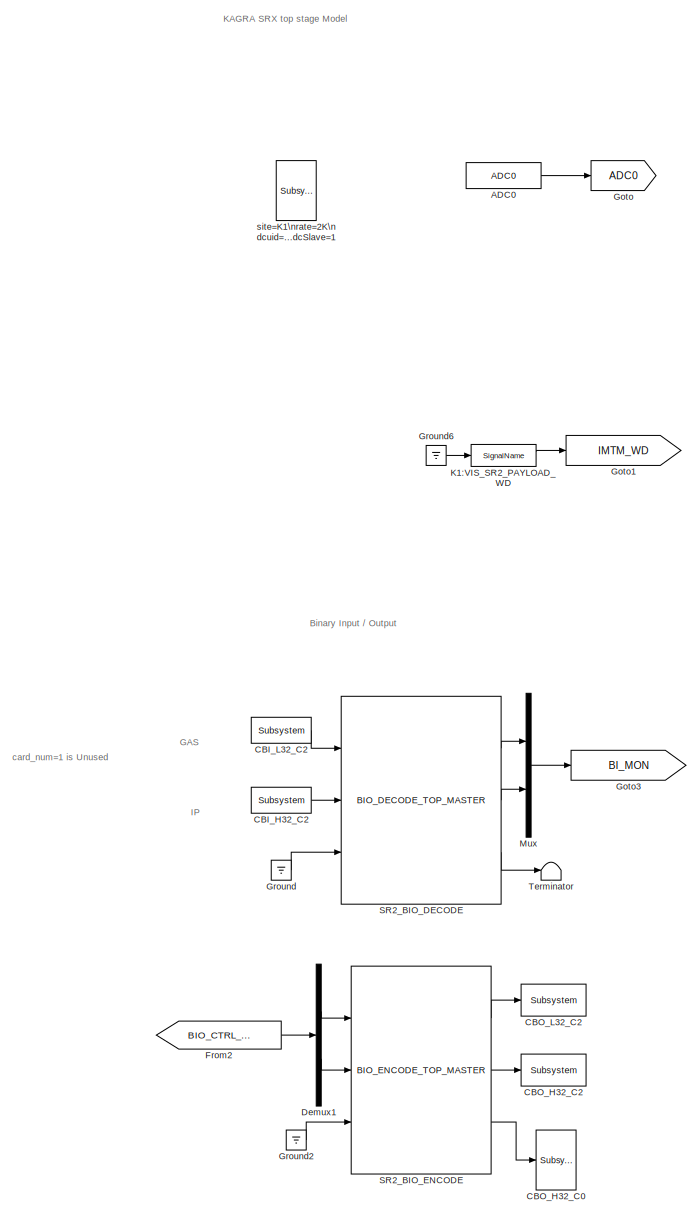
[diagram: root canvas - part 1/3, left side, full height]
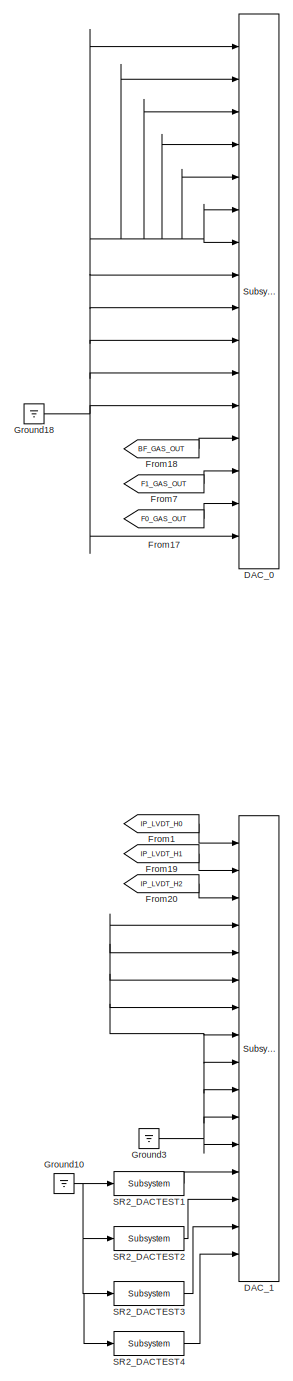
[diagram: root canvas - part 2/3, right side, full height]
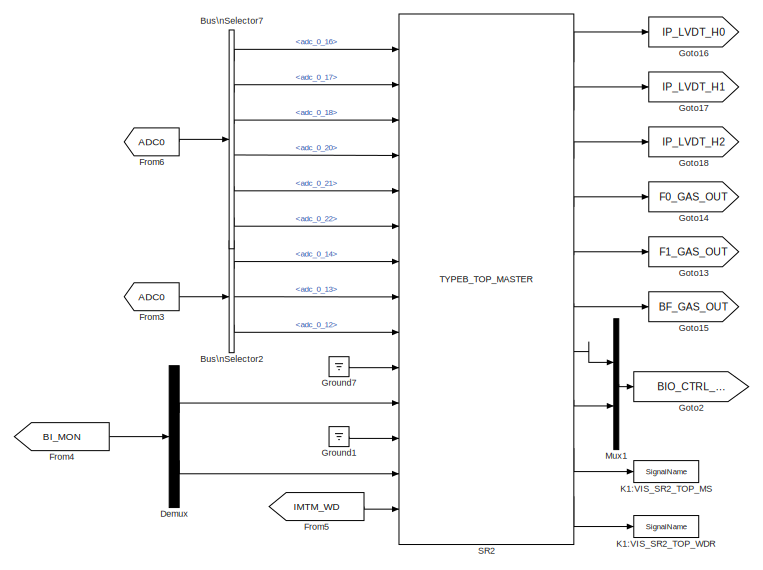
[diagram: root canvas - part 3/3, top center region]
MODEL k1vissrxt
KIND model
BLOCK [Reference] ADC0  REF=cdsAdcx0/ADC0
  AttributesFormatString = %<Description>\\n%<Tag>
  Description = type-GSC_16AI64SSA\ncard_num=0
  Ports = [0, 1]
  SID = 352
  SourceBlock = cdsAdcx0/ADC0
  SourceType = SubSystem
  Tag = cdsAdc
BLOCK [BusSelector] Bus\nSelector2
  AttributesFormatString = %<Description>
  Description = ADC Selector
  OutputSignals = adc_0_14,adc_0_13,adc_0_12
  Ports = [1, 3]
  SID = 606
BLOCK [BusSelector] Bus\nSelector7
  AttributesFormatString = %<Description>
  Description = ADC Selector
  OutputSignals = adc_0_16,adc_0_17,adc_0_18,adc_0_20,adc_0_21,adc_0_22
  Ports = [1, 6]
  SID = 611
BLOCK [Reference] CBI_H32_C2  REF=cdsCDI64/Subsystem
  AttributesFormatString = %<Tag>\\n%<Description>
  Description = card_num=5
  Ports = [0, 1]
  SID = 616
  SourceBlock = cdsCDI64/Subsystem
  SourceType = SubSystem
  Tag = cdsCDI64
BLOCK [Reference] CBI_L32_C2  REF=cdsCDI64/Subsystem
  AttributesFormatString = %<Tag>\\n%<Description>
  Description = card_num=4
  Ports = [0, 1]
  SID = 615
  SourceBlock = cdsCDI64/Subsystem
  SourceType = SubSystem
  Tag = cdsCDI64
BLOCK [Reference] CBO_H32_C0  REF=cdsCDO64/Subsystem
  AttributesFormatString = %<Tag>\\n%<Description>
  Description = card_num=1
  Ports = [1]
  SID = 722
  SourceBlock = cdsCDO64/Subsystem
  SourceType = SubSystem
  Tag = cdsCDO64
BLOCK [Reference] CBO_H32_C2  REF=cdsCDO64/Subsystem
  AttributesFormatString = %<Tag>\\n%<Description>
  Description = card_num=5
  Ports = [1]
  SID = 621
  SourceBlock = cdsCDO64/Subsystem
  SourceType = SubSystem
  Tag = cdsCDO64
BLOCK [Reference] CBO_L32_C2  REF=cdsCDO64/Subsystem
  AttributesFormatString = %<Tag>\\n%<Description>
  Description = card_num=4
  Ports = [1]
  SID = 620
  SourceBlock = cdsCDO64/Subsystem
  SourceType = SubSystem
  Tag = cdsCDO64
BLOCK [Reference] DAC_0  REF=dac/Subsystem  (lib defined in slx_40ef132df75b, slx_b7657ccccc5b, +4 more)
  AttributesFormatString = %<Description>
  Description = type=GSC_16AO16,\ncard_num=0
  Ports = [16]
  SID = 622
  SourceBlock = dac/Subsystem
  SourceType = SubSystem
BLOCK [Reference] DAC_1  REF=dac/Subsystem  (lib defined in slx_40ef132df75b, slx_b7657ccccc5b, +4 more)
  AttributesFormatString = %<Description>
  Description = type=GSC_16AO16,\ncard_num=1
  Ports = [16]
  SID = 623
  SourceBlock = dac/Subsystem
  SourceType = SubSystem
BLOCK [Demux] Demux
  DisplayOption = bar
  Outputs = 2
  Ports = [1, 2]
  SID = 624
BLOCK [Demux] Demux1
  DisplayOption = bar
  Outputs = 2
  Ports = [1, 2]
  SID = 625
BLOCK [From] From1
  GotoTag = IP_LVDT_H0
  SID = 626
BLOCK [From] From17
  GotoTag = F0_GAS_OUT
  SID = 634
BLOCK [From] From18
  GotoTag = BF_GAS_OUT
  SID = 635
BLOCK [From] From19
  GotoTag = IP_LVDT_H1
  SID = 636
BLOCK [From] From2
  GotoTag = BIO_CTRL_OUT
  SID = 637
BLOCK [From] From20
  GotoTag = IP_LVDT_H2
  SID = 638
BLOCK [From] From3
  GotoTag = ADC0
  SID = 648
BLOCK [From] From4
  GotoTag = BI_MON
  SID = 649
BLOCK [From] From5
  GotoTag = IMTM_WD
  SID = 706
BLOCK [From] From6
  GotoTag = ADC0
  SID = 651
BLOCK [From] From7
  GotoTag = F1_GAS_OUT
  SID = 652
BLOCK [Goto] Goto
  GotoTag = ADC0
  SID = 655
BLOCK [Goto] Goto1
  GotoTag = IMTM_WD
  SID = 705
BLOCK [Goto] Goto13
  GotoTag = F1_GAS_OUT
  SID = 660
BLOCK [Goto] Goto14
  GotoTag = F0_GAS_OUT
  SID = 661
BLOCK [Goto] Goto15
  GotoTag = BF_GAS_OUT
  SID = 662
BLOCK [Goto] Goto16
  GotoTag = IP_LVDT_H0
  SID = 663
BLOCK [Goto] Goto17
  GotoTag = IP_LVDT_H1
  SID = 664
BLOCK [Goto] Goto18
  GotoTag = IP_LVDT_H2
  SID = 665
BLOCK [Goto] Goto2
  GotoTag = BIO_CTRL_OUT
  SID = 667
BLOCK [Goto] Goto3
  GotoTag = BI_MON
  SID = 669
BLOCK [Ground] Ground
  SID = 822
BLOCK [Ground] Ground1
  SID = 676
BLOCK [Ground] Ground10
  SID = 677
BLOCK [Ground] Ground18
  SID = 678
BLOCK [Ground] Ground2
  SID = 825
BLOCK [Ground] Ground3
  SID = 680
BLOCK [Ground] Ground6
  SID = 704
BLOCK [Ground] Ground7
  SID = 684
BLOCK [Reference] K1:VIS_SR2_PAYLOAD_WD  REF=cdsIPCx/SignalName
  AttributesFormatString = %<Tag>
  Description = Inter-Process Communication via Shared memory.
  Ports = [1, 2]
  SID = 702
  SourceBlock = cdsIPCx/SignalName
  SourceType = SubSystem
  Tag = cdsIPCx_SHMEM
BLOCK [Reference] K1:VIS_SR2_TOP_MS  REF=cdsIPCx/SignalName
  AttributesFormatString = %<Tag>
  Description = Inter-Process Communication via Shared memory.
  Ports = [1, 2]
  SID = 716
  SourceBlock = cdsIPCx/SignalName
  SourceType = SubSystem
  Tag = cdsIPCx_SHMEM
BLOCK [Reference] K1:VIS_SR2_TOP_WDR  REF=cdsIPCx/SignalName
  AttributesFormatString = %<Tag>
  Description = Inter-Process Communication via Shared memory.
  Ports = [1, 2]
  SID = 715
  SourceBlock = cdsIPCx/SignalName
  SourceType = SubSystem
  Tag = cdsIPCx_SHMEM
BLOCK [Mux] Mux
  DisplayOption = bar
  Inputs = 2
  Ports = [2, 1]
  SID = 688
BLOCK [Mux] Mux1
  DisplayOption = bar
  Inputs = 2
  Ports = [2, 1]
  SID = 689
BLOCK [Reference] SR2  REF=TYPEB_MASTER/TYPEB_TOP_MASTER
  Ports = [14, 10]
  SID = 700
  SourceBlock = TYPEB_MASTER/TYPEB_TOP_MASTER
  SourceType = SubSystem
BLOCK [Reference] SR2_BIO_DECODE  REF=TYPEB_MASTER/BIO_DECODE_TOP_MASTER
  Ports = [3, 3]
  SID = 821
  SourceBlock = TYPEB_MASTER/BIO_DECODE_TOP_MASTER
  SourceType = SubSystem
BLOCK [Reference] SR2_BIO_ENCODE  REF=TYPEB_MASTER/BIO_ENCODE_TOP_MASTER
  Ports = [3, 3]
  SID = 824
  SourceBlock = TYPEB_MASTER/BIO_ENCODE_TOP_MASTER
  SourceType = SubSystem
BLOCK [Reference] SR2_DACTEST1  REF=cdsFilt/Subsystem
  AttributesFormatString = %<Tag>
  Description = Purpose:                                                                                                                                                                                                                                  \nStandard CDS IIR filter module.                                                                                                                                     ...<+1302ch>  <repeated x4 — deduplicated; at blocks: SR2_DACTEST1, SR2_DACTEST2, SR2_DACTEST3, SR2_DACTEST4>
  Ports = [1, 1]
  SID = 601
  SourceBlock = cdsFilt/Subsystem
  SourceType = SubSystem
  Tag = cdsFilt
BLOCK [Reference] SR2_DACTEST2  REF=cdsFilt/Subsystem
  AttributesFormatString = %<Tag>
  Ports = [1, 1]
  SID = 602
  SourceBlock = cdsFilt/Subsystem
  SourceType = SubSystem
  Tag = cdsFilt
BLOCK [Reference] SR2_DACTEST3  REF=cdsFilt/Subsystem
  AttributesFormatString = %<Tag>
  Ports = [1, 1]
  SID = 603
  SourceBlock = cdsFilt/Subsystem
  SourceType = SubSystem
  Tag = cdsFilt
BLOCK [Reference] SR2_DACTEST4  REF=cdsFilt/Subsystem
  AttributesFormatString = %<Tag>
  Ports = [1, 1]
  SID = 604
  SourceBlock = cdsFilt/Subsystem
  SourceType = SubSystem
  Tag = cdsFilt
BLOCK [Terminator] Terminator
  SID = 823
BLOCK [Reference] site=K1\nrate=2K\ndcuid=131\nhost=k1test0\nspecific_cpu=6\nadcSlave=1  REF=cdsParameters/Subsystem
  AttributesFormatString = %<Tag>
  Description = Purpose:                                                                                                                                                                                                                                \nProvide system parameters to the FE code generator to properly configure the generated EPICS names, rep rate of the FE controller, and the Data Acquisition node ID fo...<+2934ch>
  Ports = []
  SID = 690
  SourceBlock = cdsParameters/Subsystem
  SourceType = SubSystem
  Tag = cdsParameters
ANNOTATION (root): \n \n KAGRA SRX top stage Model
ANNOTATION (root): \n \n card_num=1 is Unused
ANNOTATION (root): \n \n GAS
ANNOTATION (root): \n \n IP
ANNOTATION (root): Binary Input / Output
LINE ADC0:1 -> Goto:1
LINE Bus\nSelector2:1 -> SR2:7
LINE Bus\nSelector2:2 -> SR2:8
LINE Bus\nSelector2:3 -> SR2:9
LINE Bus\nSelector7:1 -> SR2:1
LINE Bus\nSelector7:2 -> SR2:2
LINE Bus\nSelector7:3 -> SR2:3
LINE Bus\nSelector7:4 -> SR2:4
LINE Bus\nSelector7:5 -> SR2:5
LINE Bus\nSelector7:6 -> SR2:6
LINE CBI_H32_C2:1 -> SR2_BIO_DECODE:2
LINE CBI_L32_C2:1 -> SR2_BIO_DECODE:1
LINE Demux1:1 -> SR2_BIO_ENCODE:1
LINE Demux1:2 -> SR2_BIO_ENCODE:2
LINE Demux:1 -> SR2:11
LINE Demux:2 -> SR2:13
LINE From17:1 -> DAC_0:15
LINE From18:1 -> DAC_0:13
LINE From19:1 -> DAC_1:2
LINE From1:1 -> DAC_1:1
LINE From20:1 -> DAC_1:3
LINE From2:1 -> Demux1:1
LINE From3:1 -> Bus\nSelector2:1
LINE From4:1 -> Demux:1
LINE From5:1 -> SR2:14
LINE From6:1 -> Bus\nSelector7:1
LINE From7:1 -> DAC_0:14
NET Ground10:1 -> SR2_DACTEST1:1, SR2_DACTEST2:1, SR2_DACTEST3:1, SR2_DACTEST4:1
NET Ground18:1 -> DAC_0:1, DAC_0:10, DAC_0:11, DAC_0:12, DAC_0:16, DAC_0:2, DAC_0:3, DAC_0:4, DAC_0:5, DAC_0:6, DAC_0:7, DAC_0:8, DAC_0:9
LINE Ground1:1 -> SR2:12
LINE Ground2:1 -> SR2_BIO_ENCODE:3
NET Ground3:1 -> DAC_1:10, DAC_1:11, DAC_1:12, DAC_1:4, DAC_1:5, DAC_1:6, DAC_1:7, DAC_1:8, DAC_1:9
LINE Ground6:1 -> K1:VIS_SR2_PAYLOAD_WD:1
LINE Ground7:1 -> SR2:10
LINE Ground:1 -> SR2_BIO_DECODE:3
LINE K1:VIS_SR2_PAYLOAD_WD:1 -> Goto1:1
LINE Mux1:1 -> Goto2:1
LINE Mux:1 -> Goto3:1
LINE SR2:1 -> Goto16:1
LINE SR2:10 -> K1:VIS_SR2_TOP_WDR:1
LINE SR2:2 -> Goto17:1
LINE SR2:3 -> Goto18:1
LINE SR2:4 -> Goto14:1
LINE SR2:5 -> Goto13:1
LINE SR2:6 -> Goto15:1
LINE SR2:7 -> Mux1:1
LINE SR2:8 -> Mux1:2
LINE SR2:9 -> K1:VIS_SR2_TOP_MS:1
LINE SR2_BIO_DECODE:1 -> Mux:1
LINE SR2_BIO_DECODE:2 -> Mux:2
LINE SR2_BIO_DECODE:3 -> Terminator:1
LINE SR2_BIO_ENCODE:1 -> CBO_L32_C2:1
LINE SR2_BIO_ENCODE:2 -> CBO_H32_C2:1
LINE SR2_BIO_ENCODE:3 -> CBO_H32_C0:1
LINE SR2_DACTEST1:1 -> DAC_1:13
LINE SR2_DACTEST2:1 -> DAC_1:14
LINE SR2_DACTEST3:1 -> DAC_1:15
LINE SR2_DACTEST4:1 -> DAC_1:16
note: NET lines group one-source signal fan-out (src -> all destinations, sorted); 1:1 wires keep LINE
